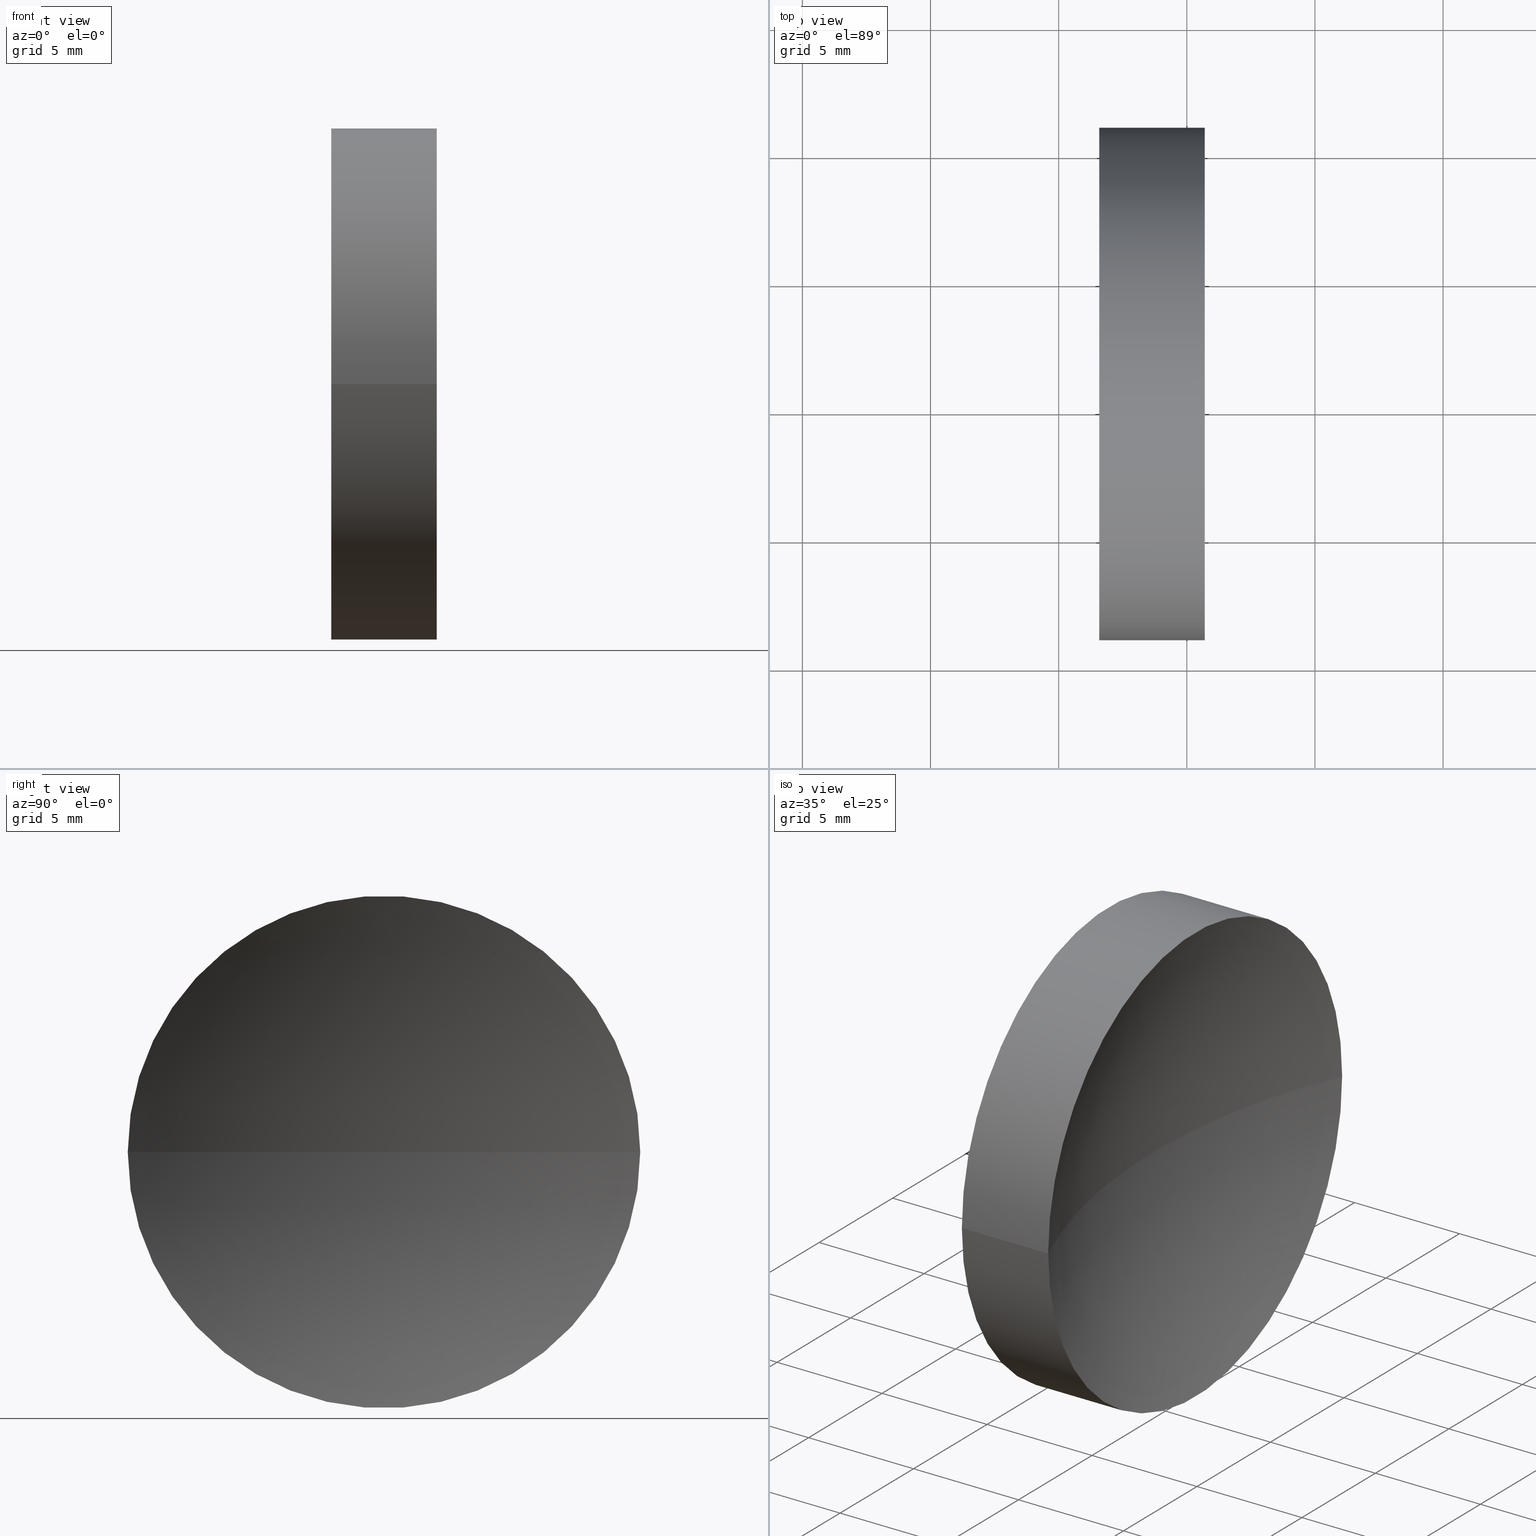
[diagram: canonical four-view strip — front | top / right | iso, engineering-drawing reading convention]
A machine part, canonical four-view strip (front | top / right | iso — engineering-drawing reading convention). The complete STEP part file that produces these views, byte-faithful:
ISO-10303-21;
HEADER;
FILE_DESCRIPTION (( 'STEP AP214' ),
    '1' );
FILE_NAME ('120148.STEP',
    '2019-06-20T02:30:23',
    ( '' ),
    ( '' ),
    'SwSTEP 2.0',
    'SolidWorks 2016',
    '' );
FILE_SCHEMA (( 'AUTOMOTIVE_DESIGN' ));
ENDSEC;

DATA;
#1 = EDGE_LOOP ( 'NONE', ( #66, #11, #19, #53 ) ) ;
#2 = PRODUCT_DEFINITION_SHAPE ( 'NONE', 'NONE',  #31 ) ;
#3 = MANIFOLD_SOLID_BREP ( '��ת1', #149 ) ;
#4 = EDGE_CURVE ( 'NONE', #126, #60, #68, .T. ) ;
#5 = FILL_AREA_STYLE ('',( #135 ) ) ;
#6 = PLANE ( 'NONE',  #52 ) ;
#7 = LINE ( 'NONE', #50, #155 ) ;
#8 = ADVANCED_FACE ( 'NONE', ( #131 ), #29, .F. ) ;
#9 = DIRECTION ( 'NONE',  ( -1.000000000000000000, 8.116490868597533400E-016, -0.0000000000000000000 ) ) ;
#10 = CARTESIAN_POINT ( 'NONE',  ( 46.58547009932218000, 36.02329994089732400, 1.224646799147353500E-015 ) ) ;
#11 = ORIENTED_EDGE ( 'NONE', *, *, #59, .T. ) ;
#12 = APPLICATION_CONTEXT ( 'automotive_design' ) ;
#13 = SURFACE_STYLE_USAGE ( .BOTH. , #112 ) ;
#14 = CIRCLE ( 'NONE', #77, 10.00000000000000200 ) ;
#15 = AXIS2_PLACEMENT_3D ( 'NONE', #49, #133, #160 ) ;
#16 = CARTESIAN_POINT ( 'NONE',  ( 74.52547009932219200, 26.02329994089731700, 0.0000000000000000000 ) ) ;
#17 = EDGE_CURVE ( 'NONE', #147, #126, #14, .T. ) ;
#18 = CIRCLE ( 'NONE', #99, 25.84000000000000300 ) ;
#19 = ORIENTED_EDGE ( 'NONE', *, *, #80, .F. ) ;
#20 = SURFACE_SIDE_STYLE ('',( #23 ) ) ;
#21 = CARTESIAN_POINT ( 'NONE',  ( 46.58547009932217300, 26.02329994089732100, 0.0000000000000000000 ) ) ;
#22 = DIRECTION ( 'NONE',  ( 8.116490868597533400E-016, 1.000000000000000000, 0.0000000000000000000 ) ) ;
#23 = SURFACE_STYLE_FILL_AREA ( #5 ) ;
#24 = CARTESIAN_POINT ( 'NONE',  ( 74.52547009932219200, 26.02329994089731700, 0.0000000000000000000 ) ) ;
#25 = DIRECTION ( 'NONE',  ( -6.938893903907229400E-016, -1.000000000000000000, 0.0000000000000000000 ) ) ;
#26 = DIRECTION ( 'NONE',  ( -1.000000000000000000, 8.116490868597533400E-016, -0.0000000000000000000 ) ) ;
#27 = PRESENTATION_LAYER_ASSIGNMENT (  '', '', ( #48 ) ) ;
#28 = PRESENTATION_LAYER_ASSIGNMENT (  '', '', ( #46 ) ) ;
#29 = SPHERICAL_SURFACE ( 'NONE', #145, 25.84000000000000300 ) ;
#30 = EDGE_LOOP ( 'NONE', ( #54, #55, #163 ) ) ;
#31 = PRODUCT_DEFINITION ( 'δ֪', '', #161, #127 ) ;
#32 = EDGE_LOOP ( 'NONE', ( #33, #45, #113 ) ) ;
#33 = ORIENTED_EDGE ( 'NONE', *, *, #17, .F. ) ;
#34 = SURFACE_STYLE_USAGE ( .BOTH. , #20 ) ;
#35 = EDGE_CURVE ( 'NONE', #121, #60, #70, .T. ) ;
#36 = DIRECTION ( 'NONE',  ( -1.000000000000000000, 8.116490868597533400E-016, -0.0000000000000000000 ) ) ;
#37 = ADVANCED_FACE ( 'NONE', ( #108 ), #6, .F. ) ;
#38 = DIRECTION ( 'NONE',  ( -9.939834562536689200E-032, -1.224646799147353200E-016, 1.000000000000000000 ) ) ;
#39 = CARTESIAN_POINT ( 'NONE',  ( 50.69889669901972700, 16.02329994089733100, 0.0000000000000000000 ) ) ;
#40 = CARTESIAN_POINT ( 'NONE',  ( 48.68547009932218100, 26.02329994089733800, 0.0000000000000000000 ) ) ;
#41 =( NAMED_UNIT ( * ) PLANE_ANGLE_UNIT ( ) SI_UNIT ( $, .RADIAN. ) );
#42 = CIRCLE ( 'NONE', #148, 10.00000000000000200 ) ;
#43 = MECHANICAL_DESIGN_GEOMETRIC_PRESENTATION_REPRESENTATION (  '', ( #48 ), #57 ) ;
#44 = DIRECTION ( 'NONE',  ( -1.000000000000000000, 0.0000000000000000000, 0.0000000000000000000 ) ) ;
#45 = ORIENTED_EDGE ( 'NONE', *, *, #165, .T. ) ;
#46 = STYLED_ITEM ( 'NONE', ( #67 ), #146 ) ;
#47 =( GEOMETRIC_REPRESENTATION_CONTEXT ( 3 ) GLOBAL_UNCERTAINTY_ASSIGNED_CONTEXT ( ( #164 ) ) GLOBAL_UNIT_ASSIGNED_CONTEXT ( ( #73, #41, #96 ) ) REPRESENTATION_CONTEXT ( 'NONE', 'WORKASPACE' ) );
#48 = STYLED_ITEM ( 'NONE', ( #63 ), #3 ) ;
#49 = CARTESIAN_POINT ( 'NONE',  ( 46.58547009932217300, 26.02329994089732800, 0.0000000000000000000 ) ) ;
#50 = CARTESIAN_POINT ( 'NONE',  ( 44.70483367244224800, 36.02329994089732400, 1.224646799147353300E-015 ) ) ;
#51 = CARTESIAN_POINT ( 'NONE',  ( 46.58547009932217300, 26.02329994089732800, 0.0000000000000000000 ) ) ;
#52 = AXIS2_PLACEMENT_3D ( 'NONE', #21, #151, #22 ) ;
#53 = ORIENTED_EDGE ( 'NONE', *, *, #4, .F. ) ;
#54 = ORIENTED_EDGE ( 'NONE', *, *, #165, .F. ) ;
#55 = ORIENTED_EDGE ( 'NONE', *, *, #65, .F. ) ;
#56 = ADVANCED_FACE ( 'NONE', ( #129 ), #58, .T. ) ;
#57 =( GEOMETRIC_REPRESENTATION_CONTEXT ( 3 ) GLOBAL_UNCERTAINTY_ASSIGNED_CONTEXT ( ( #143 ) ) GLOBAL_UNIT_ASSIGNED_CONTEXT ( ( #91, #150, #105 ) ) REPRESENTATION_CONTEXT ( 'NONE', 'WORKASPACE' ) );
#58 = CYLINDRICAL_SURFACE ( 'NONE', #90, 9.999999999999998200 ) ;
#59 = EDGE_CURVE ( 'NONE', #147, #121, #7, .T. ) ;
#60 = VERTEX_POINT ( 'NONE', #123 ) ;
#61 =( LENGTH_UNIT ( ) NAMED_UNIT ( * ) SI_UNIT ( .MILLI., .METRE. ) );
#62 = DIRECTION ( 'NONE',  ( -1.000000000000000000, 8.116490868597533400E-016, -0.0000000000000000000 ) ) ;
#63 = PRESENTATION_STYLE_ASSIGNMENT (( #34 ) ) ;
#64 = ORIENTED_EDGE ( 'NONE', *, *, #17, .T. ) ;
#65 = EDGE_CURVE ( 'NONE', #126, #147, #42, .T. ) ;
#66 = ORIENTED_EDGE ( 'NONE', *, *, #65, .T. ) ;
#67 = PRESENTATION_STYLE_ASSIGNMENT (( #13 ) ) ;
#68 = LINE ( 'NONE', #120, #89 ) ;
#69 = DIRECTION ( 'NONE',  ( 0.0000000000000000000, 0.0000000000000000000, 1.000000000000000000 ) ) ;
#70 = CIRCLE ( 'NONE', #15, 9.999999999999998200 ) ;
#71 = DIRECTION ( 'NONE',  ( -6.938893903907229400E-016, -1.000000000000000000, 0.0000000000000000000 ) ) ;
#72 = CARTESIAN_POINT ( 'NONE',  ( 44.70483367244224100, 26.02329994089732800, 0.0000000000000000000 ) ) ;
#73 =( LENGTH_UNIT ( ) NAMED_UNIT ( * ) SI_UNIT ( .MILLI., .METRE. ) );
#74 = DIRECTION ( 'NONE',  ( -6.938893903907227400E-016, -1.000000000000000000, 0.0000000000000000000 ) ) ;
#75 =( NAMED_UNIT ( * ) SI_UNIT ( $, .STERADIAN. ) SOLID_ANGLE_UNIT ( ) );
#76 = PRODUCT_CONTEXT ( 'NONE', #12, 'mechanical' ) ;
#77 = AXIS2_PLACEMENT_3D ( 'NONE', #122, #104, #118 ) ;
#78 = DIRECTION ( 'NONE',  ( 0.0000000000000000000, 0.0000000000000000000, 1.000000000000000000 ) ) ;
#79 = CIRCLE ( 'NONE', #154, 25.84000000000000300 ) ;
#80 = EDGE_CURVE ( 'NONE', #60, #121, #117, .T. ) ;
#81 =( GEOMETRIC_REPRESENTATION_CONTEXT ( 3 ) GLOBAL_UNCERTAINTY_ASSIGNED_CONTEXT ( ( #103 ) ) GLOBAL_UNIT_ASSIGNED_CONTEXT ( ( #61, #153, #75 ) ) REPRESENTATION_CONTEXT ( 'NONE', 'WORKASPACE' ) );
#82 = FACE_OUTER_BOUND ( 'NONE', #1, .T. ) ;
#83 = DIRECTION ( 'NONE',  ( 0.0000000000000000000, 0.0000000000000000000, 1.000000000000000000 ) ) ;
#84 = FILL_AREA_STYLE_COLOUR ( '', #98 ) ;
#85 = FILL_AREA_STYLE ('',( #84 ) ) ;
#86 = EDGE_LOOP ( 'NONE', ( #116, #64, #95, #132 ) ) ;
#87 = CARTESIAN_POINT ( 'NONE',  ( 50.69889669901973400, 26.02329994089732400, 0.0000000000000000000 ) ) ;
#88 = AXIS2_PLACEMENT_3D ( 'NONE', #92, #62, #144 ) ;
#89 = VECTOR ( 'NONE', #36, 1000.000000000000000 ) ;
#90 = AXIS2_PLACEMENT_3D ( 'NONE', #72, #9, #71 ) ;
#91 =( LENGTH_UNIT ( ) NAMED_UNIT ( * ) SI_UNIT ( .MILLI., .METRE. ) );
#92 = CARTESIAN_POINT ( 'NONE',  ( 44.70483367244224100, 26.02329994089732800, 0.0000000000000000000 ) ) ;
#93 = MECHANICAL_DESIGN_GEOMETRIC_PRESENTATION_REPRESENTATION (  '', ( #46 ), #47 ) ;
#94 = CYLINDRICAL_SURFACE ( 'NONE', #88, 9.999999999999998200 ) ;
#95 = ORIENTED_EDGE ( 'NONE', *, *, #4, .T. ) ;
#96 =( NAMED_UNIT ( * ) SI_UNIT ( $, .STERADIAN. ) SOLID_ANGLE_UNIT ( ) );
#97 = AXIS2_PLACEMENT_3D ( 'NONE', #51, #110, #25 ) ;
#98 = COLOUR_RGB ( '',1.000000000000000000, 1.000000000000000000, 1.000000000000000000 ) ;
#99 = AXIS2_PLACEMENT_3D ( 'NONE', #141, #38, #152 ) ;
#100 = SPHERICAL_SURFACE ( 'NONE', #106, 25.84000000000000300 ) ;
#101 = SHAPE_DEFINITION_REPRESENTATION ( #2, #146 ) ;
#102 = ORIENTED_EDGE ( 'NONE', *, *, #35, .T. ) ;
#103 = UNCERTAINTY_MEASURE_WITH_UNIT (LENGTH_MEASURE( 1.000000000000000100E-005 ), #61, 'distance_accuracy_value', 'NONE');
#104 = DIRECTION ( 'NONE',  ( -1.000000000000000000, 8.116490868597533400E-016, -0.0000000000000000000 ) ) ;
#105 =( NAMED_UNIT ( * ) SI_UNIT ( $, .STERADIAN. ) SOLID_ANGLE_UNIT ( ) );
#106 = AXIS2_PLACEMENT_3D ( 'NONE', #16, #78, #107 ) ;
#107 = DIRECTION ( 'NONE',  ( -1.074132183267372700E-015, -1.000000000000000000, 0.0000000000000000000 ) ) ;
#108 = FACE_OUTER_BOUND ( 'NONE', #114, .T. ) ;
#109 = ORIENTED_EDGE ( 'NONE', *, *, #80, .T. ) ;
#110 = DIRECTION ( 'NONE',  ( -1.000000000000000000, 8.116490868597533400E-016, -0.0000000000000000000 ) ) ;
#111 = DIRECTION ( 'NONE',  ( 0.0000000000000000000, -0.0000000000000000000, -1.000000000000000000 ) ) ;
#112 = SURFACE_SIDE_STYLE ('',( #158 ) ) ;
#113 = ORIENTED_EDGE ( 'NONE', *, *, #137, .F. ) ;
#114 = EDGE_LOOP ( 'NONE', ( #109, #102 ) ) ;
#115 = PRODUCT_RELATED_PRODUCT_CATEGORY ( 'part', '', ( #130 ) ) ;
#116 = ORIENTED_EDGE ( 'NONE', *, *, #59, .F. ) ;
#117 = CIRCLE ( 'NONE', #97, 9.999999999999998200 ) ;
#118 = DIRECTION ( 'NONE',  ( -6.938893903907227400E-016, -1.000000000000000000, 0.0000000000000000000 ) ) ;
#119 = CARTESIAN_POINT ( 'NONE',  ( 74.52547009932219200, 26.02329994089731700, 0.0000000000000000000 ) ) ;
#120 = CARTESIAN_POINT ( 'NONE',  ( 44.70483367244223400, 16.02329994089733100, 0.0000000000000000000 ) ) ;
#121 = VERTEX_POINT ( 'NONE', #10 ) ;
#122 = CARTESIAN_POINT ( 'NONE',  ( 50.69889669901973400, 26.02329994089732400, 0.0000000000000000000 ) ) ;
#123 = CARTESIAN_POINT ( 'NONE',  ( 46.58547009932216600, 16.02329994089733100, 0.0000000000000000000 ) ) ;
#124 = CARTESIAN_POINT ( 'NONE',  ( 50.69889669901974800, 36.02329994089732400, 1.224646799147352700E-015 ) ) ;
#125 = DIRECTION ( 'NONE',  ( 1.000000000000000000, 0.0000000000000000000, 0.0000000000000000000 ) ) ;
#126 = VERTEX_POINT ( 'NONE', #39 ) ;
#127 = PRODUCT_DEFINITION_CONTEXT ( 'detailed design', #162, 'design' ) ;
#128 = COLOUR_RGB ( '',1.000000000000000000, 1.000000000000000000, 1.000000000000000000 ) ;
#129 = FACE_OUTER_BOUND ( 'NONE', #86, .T. ) ;
#130 = PRODUCT ( '120148', '120148', '', ( #76 ) ) ;
#131 = FACE_OUTER_BOUND ( 'NONE', #32, .T. ) ;
#132 = ORIENTED_EDGE ( 'NONE', *, *, #35, .F. ) ;
#133 = DIRECTION ( 'NONE',  ( -1.000000000000000000, 8.116490868597533400E-016, -0.0000000000000000000 ) ) ;
#134 = DIRECTION ( 'NONE',  ( -1.074132183267372700E-015, -1.000000000000000000, 0.0000000000000000000 ) ) ;
#135 = FILL_AREA_STYLE_COLOUR ( '', #128 ) ;
#136 = FACE_OUTER_BOUND ( 'NONE', #30, .T. ) ;
#137 = EDGE_CURVE ( 'NONE', #126, #140, #79, .T. ) ;
#138 = CARTESIAN_POINT ( 'NONE',  ( 0.0000000000000000000, 0.0000000000000000000, 0.0000000000000000000 ) ) ;
#139 = ADVANCED_FACE ( 'NONE', ( #136 ), #100, .F. ) ;
#140 = VERTEX_POINT ( 'NONE', #40 ) ;
#141 = CARTESIAN_POINT ( 'NONE',  ( 74.52547009932219200, 26.02329994089731700, 0.0000000000000000000 ) ) ;
#142 = DIRECTION ( 'NONE',  ( -1.000000000000000000, 8.116490868597533400E-016, -0.0000000000000000000 ) ) ;
#143 = UNCERTAINTY_MEASURE_WITH_UNIT (LENGTH_MEASURE( 1.000000000000000100E-005 ), #91, 'distance_accuracy_value', 'NONE');
#144 = DIRECTION ( 'NONE',  ( -6.938893903907229400E-016, -1.000000000000000000, 0.0000000000000000000 ) ) ;
#145 = AXIS2_PLACEMENT_3D ( 'NONE', #119, #69, #134 ) ;
#146 = ADVANCED_BREP_SHAPE_REPRESENTATION ( '120148', ( #3, #156 ), #81 ) ;
#147 = VERTEX_POINT ( 'NONE', #124 ) ;
#148 = AXIS2_PLACEMENT_3D ( 'NONE', #87, #142, #74 ) ;
#149 = CLOSED_SHELL ( 'NONE', ( #159, #8, #139, #56, #37 ) ) ;
#150 =( NAMED_UNIT ( * ) PLANE_ANGLE_UNIT ( ) SI_UNIT ( $, .RADIAN. ) );
#151 = DIRECTION ( 'NONE',  ( 1.000000000000000000, -8.116490868597533400E-016, 0.0000000000000000000 ) ) ;
#152 = DIRECTION ( 'NONE',  ( 0.0000000000000000000, -1.000000000000000000, -1.224646799147353200E-016 ) ) ;
#153 =( NAMED_UNIT ( * ) PLANE_ANGLE_UNIT ( ) SI_UNIT ( $, .RADIAN. ) );
#154 = AXIS2_PLACEMENT_3D ( 'NONE', #24, #111, #44 ) ;
#155 = VECTOR ( 'NONE', #26, 1000.000000000000000 ) ;
#156 = AXIS2_PLACEMENT_3D ( 'NONE', #138, #83, #125 ) ;
#157 = APPLICATION_PROTOCOL_DEFINITION ( 'draft international standard', 'automotive_design', 1998, #12 ) ;
#158 = SURFACE_STYLE_FILL_AREA ( #85 ) ;
#159 = ADVANCED_FACE ( 'NONE', ( #82 ), #94, .T. ) ;
#160 = DIRECTION ( 'NONE',  ( -6.938893903907229400E-016, -1.000000000000000000, 0.0000000000000000000 ) ) ;
#161 = PRODUCT_DEFINITION_FORMATION_WITH_SPECIFIED_SOURCE ( '�κ�', '', #130, .NOT_KNOWN. ) ;
#162 = APPLICATION_CONTEXT ( 'automotive_design' ) ;
#163 = ORIENTED_EDGE ( 'NONE', *, *, #137, .T. ) ;
#164 = UNCERTAINTY_MEASURE_WITH_UNIT (LENGTH_MEASURE( 1.000000000000000100E-005 ), #73, 'distance_accuracy_value', 'NONE');
#165 = EDGE_CURVE ( 'NONE', #147, #140, #18, .T. ) ;
#166 = APPLICATION_PROTOCOL_DEFINITION ( 'draft international standard', 'automotive_design', 1998, #162 ) ;
ENDSEC;
END-ISO-10303-21;
